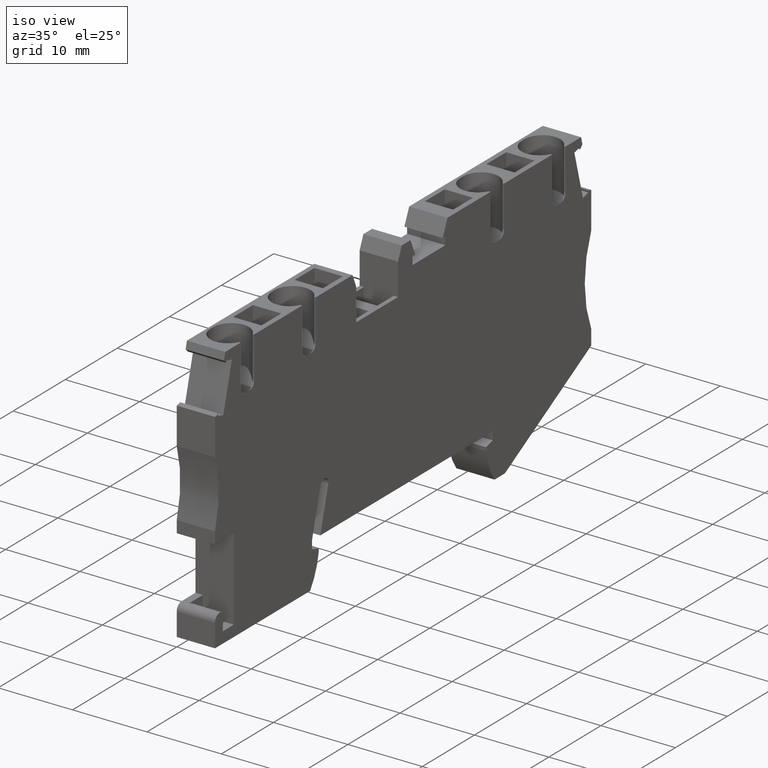
[diagram: clean part render]
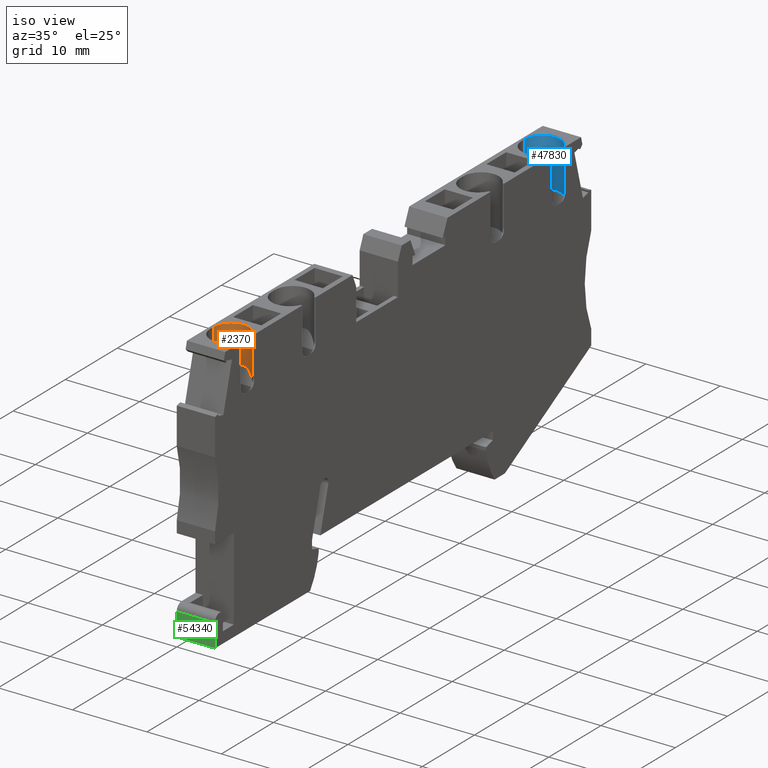
[diagram: same view with three faces highlighted in distinct colors, each labeled with its STEP entity id]
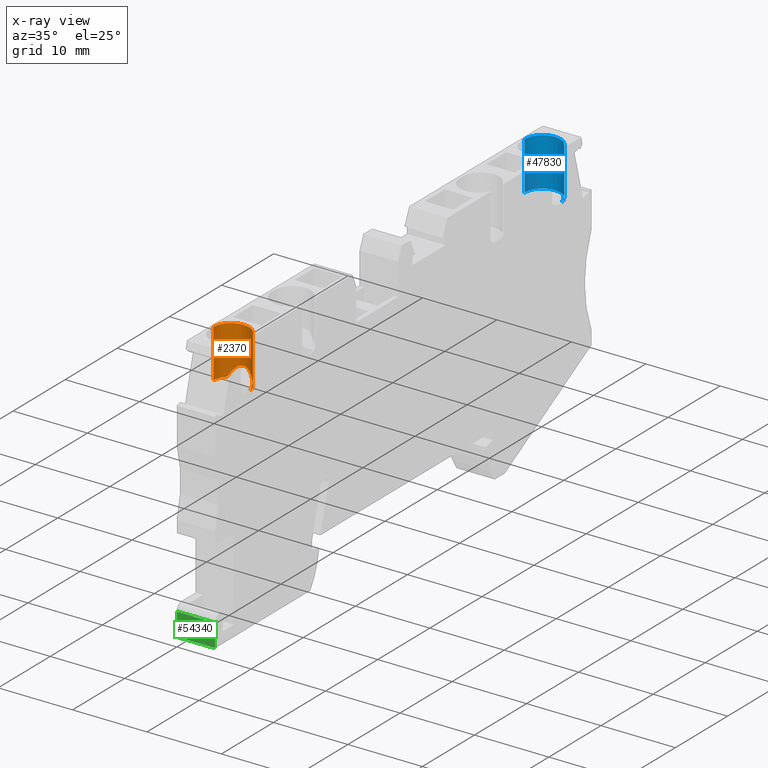
[diagram: x-ray of the same camera — body ghosted, the three highlighted faces saturated]
A machine part, iso view with three faces highlighted in distinct colors.
The next image is the same camera in x-ray (body ghosted, the three faces saturated) — at least one of them is partly hidden behind the body in this view.
Their STEP definitions:

[orange] entity #2370 — the highlighted cylindrical surface (edge-blend (fillet) strip) has radius 2.4 mm, axis along (-0, -0, -1).
#100=CARTESIAN_POINT('',(3.0302664117588,29.6726321138694,
-4.80000000000001));
#110=VERTEX_POINT('',#100);
#160=CARTESIAN_POINT('',(2.76772279777433,31.8108782585317,
-4.80000000000475));
#170=DIRECTION('',(0.12186934340538,-0.992546151641294,
1.13103740604827E-12));
#180=VECTOR('',#170,1.);
#190=LINE('',#160,#180);
#200=CARTESIAN_POINT('',(3.82241714388484,23.2210821281982,
-4.79999999999497));
#210=VERTEX_POINT('',#200);
#220=EDGE_CURVE('',#110,#210,#190,.T.);
#950=CARTESIAN_POINT('',(2.7677227977839,31.8108782585354,
-2.40000000000001));
#960=DIRECTION('',(0.121869343405031,-0.992546151641337,0.));
#970=DIRECTION('',(-0.992546151641336,-0.121869343405031,0.));
#980=AXIS2_PLACEMENT_3D('',#950,#960,#970);
#990=CYLINDRICAL_SURFACE('',#980,2.4);
#1000=CARTESIAN_POINT('',(2.76772279778444,31.8108782585359,
-2.400000000014));
#1010=DIRECTION('',(0.12186934340538,-0.992546151641294,
1.00840768931766E-12));
#1020=DIRECTION('',(-0.992546151641294,-0.12186934340538,
3.13113473914181E-12));
#1030=AXIS2_PLACEMENT_3D('',#1000,#1010,#1020);
#1040=CYLINDRICAL_SURFACE('',#1030,2.4);
#1050=CARTESIAN_POINT('',(3.70054780049966,24.2136282798484,
0.999999999993703));
#1060=DIRECTION('',(2.98489742583541E-12,1.38248290075582E-12,1.));
#1070=DIRECTION('',(0.992546151641279,0.121869343405497,
-3.13113473914193E-12));
#1080=AXIS2_PLACEMENT_3D('',#1050,#1060,#1070);
#1090=CYLINDRICAL_SURFACE('',#1080,1.);
#1100=CARTESIAN_POINT('',(4.69309395213732,24.3354976232521,
-0.218257577082248));
#1110=CARTESIAN_POINT('',(4.69510129655375,24.3191491149245,
-0.218257577082231));
#1120=CARTESIAN_POINT('',(4.69670914462344,24.3027127877051,
-0.21807078793209));
#1130=CARTESIAN_POINT('',(4.69790958543573,24.2862193946054,
-0.21769616423447));
#1140=CARTESIAN_POINT('',(4.69911001901502,24.2697261008831,
-0.217321542794066));
#1150=CARTESIAN_POINT('',(4.69990297888151,24.2531761266694,
-0.216759078526361));
#1160=CARTESIAN_POINT('',(4.70028384065575,24.2366032663707,
-0.216011075517101));
#1170=CARTESIAN_POINT('',(4.70066470107563,24.2200304650058,
-0.215263075167767));
#1180=CARTESIAN_POINT('',(4.70063343317514,24.2034351812846,
-0.214329551570628));
#1190=CARTESIAN_POINT('',(4.70018927362776,24.186852821026,
-0.213216285581658));
#1200=CARTESIAN_POINT('',(4.69974511468027,24.1702704831643,
-0.212103021096318));
#1210=CARTESIAN_POINT('',(4.69888806935965,24.1537014690936,
-0.210810051599344));
#1220=CARTESIAN_POINT('',(4.6976214604384,24.1371814574852,
-0.209346513433232));
#1230=CARTESIAN_POINT('',(4.69635485067882,24.1206614349429,
-0.207882974298452));
#1240=CARTESIAN_POINT('',(4.6946787146372,24.1041907940216,
-0.206248921879798));
#1250=CARTESIAN_POINT('',(4.69260037860994,24.0878042668063,
-0.204456509656588));
#1260=CARTESIAN_POINT('',(4.6905220372498,24.0714176975441,
-0.202664092834156));
#1270=CARTESIAN_POINT('',(4.68804156011477,24.0551155866916,
-0.20071338449849));
#1280=CARTESIAN_POINT('',(4.68516992616435,24.0389306277603,
-0.198619041852016));
#1290=CARTESIAN_POINT('',(4.6822982794351,24.0227455968057,
-0.196524689885678));
#1300=CARTESIAN_POINT('',(4.67903556113551,24.0066780190376,
-0.194286779224982));
#1310=CARTESIAN_POINT('',(4.67539581462032,23.9907575788606,
-0.191921828818129));
#1320=CARTESIAN_POINT('',(4.67175647986065,23.9748389397236,
-0.189557145952272));
#1330=CARTESIAN_POINT('',(4.66774445156154,23.9590762297988,
-0.187067547628206));
#1340=CARTESIAN_POINT('',(4.6633357848169,23.9433704450898,
-0.18444811097202));
#1350=CARTESIAN_POINT('',(4.65452328558711,23.9119760976219,
-0.179212109964879));
#1360=CARTESIAN_POINT('',(4.64416096003364,23.8809726129746,
-0.17348017702119));
#1370=CARTESIAN_POINT('',(4.63230909522656,23.8505568135451,
-0.167378541346332));
#1380=CARTESIAN_POINT('',(4.62045735835379,23.8201413424372,
-0.161276971535245));
#1390=CARTESIAN_POINT('',(4.6071179653258,23.7903188851608,
-0.154807334909349));
#1400=CARTESIAN_POINT('',(4.59238838661862,23.7612784495764,
-0.148113792822767));
#1410=CARTESIAN_POINT('',(4.57765874967341,23.7322378991715,
-0.141420224271158));
#1420=CARTESIAN_POINT('',(4.56154136809715,23.7039839159729,
-0.134504457880123));
#1430=CARTESIAN_POINT('',(4.54416472026495,23.6766827586995,
-0.127516013848559));
#1440=CARTESIAN_POINT('',(4.53547648033003,23.663032312009,
-0.124021825607863));
#1450=CARTESIAN_POINT('',(4.52647410188176,23.6496200497468,
-0.120509571688361));
#1460=CARTESIAN_POINT('',(4.51717586276536,23.6364639982816,
-0.116997504508465));
#1470=CARTESIAN_POINT('',(4.50788420952842,23.6233172651581,
-0.113487924901837));
#1480=CARTESIAN_POINT('',(4.49827624375573,23.6103951051443,
-0.109970314052862));
#1490=CARTESIAN_POINT('',(4.48832642173269,23.5976698040361,
-0.106448833256284));
#1500=CARTESIAN_POINT('',(4.46843281867812,23.5722269279313,
-0.0994080097150036));
#1510=CARTESIAN_POINT('',(4.44722157744066,23.5476436877353,
-0.0923711030120891));
#1520=CARTESIAN_POINT('',(4.42480159884346,23.524094788569,
-0.0854804788657493));
#1530=CARTESIAN_POINT('',(4.40238179293491,23.5005460707868,
-0.0785899077940616));
#1540=CARTESIAN_POINT('',(4.37875654722166,23.4780354965052,
-0.0718471964624229));
#1550=CARTESIAN_POINT('',(4.35406871561483,23.4567198220176,
-0.0653881134643867));
#1560=CARTESIAN_POINT('',(4.32938073164925,23.4354040159823,
-0.0589289906046975));
#1570=CARTESIAN_POINT('',(4.30363439013981,23.4152866823228,
-0.052754995783437));
#1580=CARTESIAN_POINT('',(4.27699607225343,23.3964946371711,
-0.0469850169134262));
#1590=CARTESIAN_POINT('',(4.26367706408958,23.3870987209628,
-0.0441000601379009));
#1600=CARTESIAN_POINT('',(4.25013579446914,23.3780339249628,
-0.0413158838016215));
#1610=CARTESIAN_POINT('',(4.23639421230892,23.3693128038856,
-0.0386451672767866));
#1620=CARTESIAN_POINT('',(4.22265575772664,23.3605936677317,
-0.0359750586058358));
#1630=CARTESIAN_POINT('',(4.20871517465638,23.352215230706,
-0.0334174451474615));
#1640=CARTESIAN_POINT('',(4.19452053638074,23.3441508872696,
-0.0309723698893231));
#1650=CARTESIAN_POINT('',(4.18033184828999,23.3360899242882,
-0.0285283195709945));
#1660=CARTESIAN_POINT('',(4.16591492134812,23.3283590142944,
-0.0262016939255127));
#1670=CARTESIAN_POINT('',(4.15129532561139,23.3209767976866,
-0.0240055871570378));
#1680=CARTESIAN_POINT('',(4.13667574250509,23.3135945874567,
-0.0218094822858623));
#1690=CARTESIAN_POINT('',(4.12185373589116,23.3065612034003,
-0.0197439478260299));
#1700=CARTESIAN_POINT('',(4.10685698779988,23.2998926264367,
-0.0178202778407761));
#1710=CARTESIAN_POINT('',(4.09186022882372,23.2932240446329,
-0.0158966064592927));
#1720=CARTESIAN_POINT('',(4.07668899710262,23.2869203873977,
-0.0141148426023882));
#1730=CARTESIAN_POINT('',(4.06137227411581,23.2809945364957,
-0.0124841907803215));
#1740=CARTESIAN_POINT('',(4.04605411115649,23.2750681284861,
-0.0108533856556333));
#1750=CARTESIAN_POINT('',(4.03059690225624,23.2695217588305,
-0.00937428352168369));
#1760=CARTESIAN_POINT('',(4.01501232411688,23.2643590538714,
-0.00805230250658976));
#1770=CARTESIAN_POINT('',(3.99942083398203,23.2591940591749,
-0.00672973517297401));
#1780=CARTESIAN_POINT('',(3.98367202822435,23.254403566421,
-0.00556204332547662));
#1790=CARTESIAN_POINT('',(3.96779762735809,23.2500010022949,
-0.00455663736925323));
#1800=CARTESIAN_POINT('',(3.95192324538313,23.2455984434081,
-0.00355123260951102));
#1810=CARTESIAN_POINT('',(3.93592360987908,23.2415839177306,
-0.00270814560130865));
#1820=CARTESIAN_POINT('',(3.91983219549759,23.2379672966623,
-0.0020323009959855));
#1830=CARTESIAN_POINT('',(3.88763283678963,23.2307303393427,
-0.000679917522307328));
#1840=CARTESIAN_POINT('',(3.8551403750735,23.2251000357765,
-5.38667812262807E-12));
#1850=CARTESIAN_POINT('',(3.82241714390252,23.2210821282058,
-5.27775441850125E-12));
#1860=B_SPLINE_CURVE_WITH_KNOTS('',3,(#1100,#1110,#1120,#1130,#1140,
#1150,#1160,#1170,#1180,#1190,#1200,#1210,#1220,#1230,#1240,#1250,#1260,
#1270,#1280,#1290,#1300,#1310,#1320,#1330,#1340,#1350,#1360,#1370,#1380,
#1390,#1400,#1410,#1420,#1430,#1440,#1450,#1460,#1470,#1480,#1490,#1500,
#1510,#1520,#1530,#1540,#1550,#1560,#1570,#1580,#1590,#1600,#1610,#1620,
#1630,#1640,#1650,#1660,#1670,#1680,#1690,#1700,#1710,#1720,#1730,#1740,
#1750,#1760,#1770,#1780,#1790,#1800,#1810,#1820,#1830,#1840,#1850),
.UNSPECIFIED.,.F.,.F.,(4,3,3,3,3,3,3,3,3,3,3,3,3,3,3,3,3,3,3,3,3,3,3,3,3
,4),(0.,0.0495222692515205,0.0992298942328629,0.14906498941214,
0.198959033159793,0.248837074434924,0.298621508203579,0.348235771127345,
0.397706633074324,0.497087658472134,0.596803861500138,0.696371962687115,
0.745940559031205,0.795428028472669,0.894905849219323,0.994675469479325,
1.09424413440797,1.14381654088023,1.19327271568538,1.24281586857581,
1.2923952060014,1.34194342067796,1.39140236454927,1.44088137071391,
1.49040354021052,1.58933923289349),.UNSPECIFIED.);
#1870=SURFACE_CURVE('',#1860,(#1040,#1090),.CURVE_3D.);
#1880=CARTESIAN_POINT('',(4.69309395213732,24.3354976232521,
-0.218257577072674));
#1890=VERTEX_POINT('',#1880);
#1900=CARTESIAN_POINT('',(3.82241714390137,23.2210821282148,
-2.84813481314502E-14));
#1910=VERTEX_POINT('',#1900);
#1920=EDGE_CURVE('',#1890,#1910,#1870,.T.);
#1930=ORIENTED_EDGE('',*,*,#1920,.F.);
#1940=CARTESIAN_POINT('',(3.82241714389476,23.2210821282039,
-2.40000000000528));
#1950=DIRECTION('',(-0.12186934340538,0.992546151641294,
-1.00840768931765E-12));
#1960=DIRECTION('',(-0.992546151641294,-0.121869343405379,
3.13113473914181E-12));
#1970=AXIS2_PLACEMENT_3D('',#1940,#1950,#1960);
#1980=CIRCLE('',#1970,2.4);
#1990=CARTESIAN_POINT('',(5.49772121204459,23.4267836025953,
-0.693822054213998));
#2000=VERTEX_POINT('',#1990);
#2010=EDGE_CURVE('',#1910,#2000,#1980,.T.);
#2020=ORIENTED_EDGE('',*,*,#2010,.F.);
#2030=CARTESIAN_POINT('',(4.26354537927533,19.6283809601105,
-2.40000000000163));
#2040=DIRECTION('',(0.951056516295263,-0.309016994374611,
-2.41160029156007E-12));
#2050=DIRECTION('',(-0.309016994374611,-0.951056516295263,
2.23720246206797E-12));
#2060=AXIS2_PLACEMENT_3D('',#2030,#2040,#2050);
#2070=ELLIPSE('',#2060,5.67888379956744,2.4);
#2080=CARTESIAN_POINT('',(5.49772121203105,23.42678360259,
-4.10617794579784));
#2090=VERTEX_POINT('',#2080);
#2100=EDGE_CURVE('',#2090,#2000,#2070,.T.);
#2110=ORIENTED_EDGE('',*,*,#2100,.T.);
#2120=CARTESIAN_POINT('',(3.82241714389476,23.2210821282039,
-2.40000000000528));
#2130=DIRECTION('',(-0.12186934340538,0.992546151641294,
-1.00840768931765E-12));
#2140=DIRECTION('',(-0.992546151641294,-0.121869343405379,
3.13113473914181E-12));
#2150=AXIS2_PLACEMENT_3D('',#2120,#2130,#2140);
#2160=CIRCLE('',#2150,2.4);
#2170=EDGE_CURVE('',#2090,#210,#2160,.T.);
#2180=ORIENTED_EDGE('',*,*,#2170,.F.);
#2190=ORIENTED_EDGE('',*,*,#220,.T.);
#2200=CARTESIAN_POINT('',(3.0302664117588,29.6726321138694,
-2.40000000000001));
#2210=DIRECTION('',(-0.121869343405031,0.992546151641336,0.));
#2220=DIRECTION('',(-0.992546151641336,-0.121869343405031,0.));
#2230=AXIS2_PLACEMENT_3D('',#2200,#2210,#2220);
#2240=CIRCLE('',#2230,2.4);
#2250=CARTESIAN_POINT('',(4.02281256340008,29.7945014572744,
-0.218257577072847));
#2260=VERTEX_POINT('',#2250);
#2270=EDGE_CURVE('',#2260,#110,#2240,.T.);
#2280=ORIENTED_EDGE('',*,*,#2270,.T.);
#2290=CARTESIAN_POINT('',(3.76026894943219,31.9327476019444,
-0.218257577081332));
#2300=DIRECTION('',(0.12186934340538,-0.992546151641294,
1.13103740604827E-12));
#2310=VECTOR('',#2300,1.);
#2320=LINE('',#2290,#2310);
#2330=EDGE_CURVE('',#2260,#1890,#2320,.T.);
#2340=ORIENTED_EDGE('',*,*,#2330,.F.);
#2350=EDGE_LOOP('',(#2340,#2280,#2190,#2180,#2110,#2020,#1930));
#2360=FACE_OUTER_BOUND('',#2350,.T.);
#2370=ADVANCED_FACE('',(#2360),#990,.F.);

[blue] entity #47830 — the highlighted cylindrical surface (edge-blend (fillet) strip) has radius 2.4 mm, axis along (0, 0, 1).
#31400=CARTESIAN_POINT('',(63.3274451239699,37.0761947257315,
-0.218257577073019));
#31410=VERTEX_POINT('',#31400);
#31440=CARTESIAN_POINT('',(62.3348989723283,36.9543253823263,
-2.40000000000001));
#31450=DIRECTION('',(-0.121869343405147,0.992546151641322,0.));
#31460=DIRECTION('',(0.992546151641322,0.121869343405147,0.));
#31470=AXIS2_PLACEMENT_3D('',#31440,#31450,#31460);
#31480=CIRCLE('',#31470,2.4);
#31490=CARTESIAN_POINT('',(62.3348989723377,36.9543253823248,
-4.80000000000001));
#31500=VERTEX_POINT('',#31490);
#31510=EDGE_CURVE('',#31410,#31500,#31480,.T.);
#34460=CARTESIAN_POINT('',(63.1270497044519,30.5027753966438,
-2.79531786404291E-14));
#34470=VERTEX_POINT('',#34460);
#36020=CARTESIAN_POINT('',(63.1270497044689,30.5027753966569,
-4.79999999999058));
#36030=VERTEX_POINT('',#36020);
#36060=CARTESIAN_POINT('',(63.1270497044594,30.5027753966585,
-2.39999999999058));
#36070=DIRECTION('',(-0.121869343404804,0.992546151641365,
-1.13103740604782E-12));
#36080=DIRECTION('',(0.992546151641365,0.121869343404804,
3.8387857648633E-12));
#36090=AXIS2_PLACEMENT_3D('',#36060,#36070,#36080);
#36100=CIRCLE('',#36090,2.40000000000001);
#36110=EDGE_CURVE('',#34470,#36030,#36100,.T.);
#38180=CARTESIAN_POINT('',(63.1630859818363,30.2092834698012,
-4.79999999999025));
#38190=DIRECTION('',(-0.121869343404804,0.992546151641365,
-1.13103740604782E-12));
#38200=VECTOR('',#38190,1.);
#38210=LINE('',#38180,#38200);
#38220=EDGE_CURVE('',#36030,#31500,#38210,.T.);
#46720=CARTESIAN_POINT('',(63.1630859818291,30.2092834698035,
-2.40000000000001));
#46730=DIRECTION('',(-0.121869343405148,0.992546151641323,0.));
#46740=DIRECTION('',(0.992546151641323,0.121869343405148,0.));
#46750=AXIS2_PLACEMENT_3D('',#46720,#46730,#46740);
#46760=CYLINDRICAL_SURFACE('',#46750,2.4);
#46770=CARTESIAN_POINT('',(64.1556321334602,30.331152813209,
-0.218257577059555));
#46780=DIRECTION('',(-0.121869343404804,0.992546151641365,
-1.13103740604781E-12));
#46790=VECTOR('',#46780,1.);
#46800=LINE('',#46770,#46790);
#46810=CARTESIAN_POINT('',(63.9977265125641,31.6171908927157,
-0.218257577061042));
#46820=VERTEX_POINT('',#46810);
#46830=EDGE_CURVE('',#46820,#31410,#46800,.T.);
#46840=ORIENTED_EDGE('',*,*,#46830,.T.);
#46850=CARTESIAN_POINT('',(63.0051803610421,31.4953215483022,
1.00000000000827));
#46860=DIRECTION('',(-3.94801515072011E-12,6.54778918764693E-13,1.));
#46870=DIRECTION('',(-0.992546151641365,-0.121869343404804,
-3.8387857648633E-12));
#46880=AXIS2_PLACEMENT_3D('',#46850,#46860,#46870);
#46890=CYLINDRICAL_SURFACE('',#46880,1.);
#46900=CARTESIAN_POINT('',(63.1630859818268,30.2092834698027,
-2.39999999999025));
#46910=DIRECTION('',(-0.121869343404804,0.992546151641366,
-1.13103740604782E-12));
#46920=DIRECTION('',(0.992546151641365,0.121869343404804,
3.8387857648633E-12));
#46930=AXIS2_PLACEMENT_3D('',#46900,#46910,#46920);
#46940=CYLINDRICAL_SURFACE('',#46930,2.4);
#46950=CARTESIAN_POINT('',(63.9977265125643,31.6171908927157,
-0.218257577061158));
#46960=CARTESIAN_POINT('',(63.9997522145442,31.6006928741701,
-0.218257577068888));
#46970=CARTESIAN_POINT('',(64.001365343558,31.5841514165493,
-0.218067316109941));
#46980=CARTESIAN_POINT('',(64.0025645846775,31.5676037069076,
-0.217689124932017));
#46990=CARTESIAN_POINT('',(64.0037638300489,31.5510559385959,
-0.217310932413213));
#47000=CARTESIAN_POINT('',(64.0045491807742,31.5345023518314,
-0.216744838382628));
#47010=CARTESIAN_POINT('',(64.0049236561439,31.5179786423022,
-0.215996705074004));
#47020=CARTESIAN_POINT('',(64.005298266334,31.5014489838286,
-0.215248302418879));
#47030=CARTESIAN_POINT('',(64.0052623599498,31.4849749303072,
-0.214319453803042));
#47040=CARTESIAN_POINT('',(64.0048210555576,31.4685170360304,
-0.213214334856575));
#47050=CARTESIAN_POINT('',(64.0043795206013,31.4520505431524,
-0.212108638529013));
#47060=CARTESIAN_POINT('',(64.0035303556098,31.4355759750499,
-0.210824344159128));
#47070=CARTESIAN_POINT('',(64.00227310872,31.4191240907476,
-0.209368591833859));
#47080=CARTESIAN_POINT('',(64.0010158665856,31.4026722686717,
-0.207912845014716));
#47090=CARTESIAN_POINT('',(63.9993505472256,31.3862434655127,
-0.206285674118484));
#47100=CARTESIAN_POINT('',(63.9972800700191,31.3698696951581,
-0.204497188938844));
#47110=CARTESIAN_POINT('',(63.9952095965674,31.3534959544968,
-0.202708707002559));
#47120=CARTESIAN_POINT('',(63.9927339986313,31.3371775714581,
-0.200758961030407));
#47130=CARTESIAN_POINT('',(63.9898596965807,31.3209466470898,
-0.198660784950287));
#47140=CARTESIAN_POINT('',(63.986985394744,31.3047157239293,
-0.196562609026297));
#47150=CARTESIAN_POINT('',(63.9837124457505,31.2885725616699,
-0.194316065029682));
#47160=CARTESIAN_POINT('',(63.9800506595587,31.2725483428224,
-0.191936309705982));
#47170=CARTESIAN_POINT('',(63.9763888678494,31.2565240998307,
-0.189556550796622));
#47180=CARTESIAN_POINT('',(63.9723383140675,31.2406190723567,
-0.187043649637802));
#47190=CARTESIAN_POINT('',(63.9679118900246,31.224862673217,
-0.184414573471664));
#47200=CARTESIAN_POINT('',(63.9634854526562,31.2091062266433,
-0.181785489390802));
#47210=CARTESIAN_POINT('',(63.9586832333466,31.1934986465699,
-0.179040302012012));
#47220=CARTESIAN_POINT('',(63.9535207333336,31.1780668583586,
-0.176197207619857));
#47230=CARTESIAN_POINT('',(63.9483589070478,31.1626370840581,
-0.173354484263038));
#47240=CARTESIAN_POINT('',(63.9428405497679,31.1473882259493,
-0.170415406049728));
#47250=CARTESIAN_POINT('',(63.9369386847306,31.1322424574056,
-0.167377011765616));
#47260=CARTESIAN_POINT('',(63.9251405097435,31.1019651761626,
-0.16130308306388));
#47270=CARTESIAN_POINT('',(63.9118531178184,31.0722360157479,
-0.154856457053154));
#47280=CARTESIAN_POINT('',(63.8971562061061,31.0432384897484,
-0.148175269790782));
#47290=CARTESIAN_POINT('',(63.882459369991,31.0142411129048,
-0.141494116894748));
#47300=CARTESIAN_POINT('',(63.8663551133367,30.9859797105584,
-0.134579966458527));
#47310=CARTESIAN_POINT('',(63.8489553501226,30.9586244570014,
-0.127579597207423));
#47320=CARTESIAN_POINT('',(63.8315554382494,30.9312689697279,
-0.120579168146906));
#47330=CARTESIAN_POINT('',(63.812862642267,30.9048234436436,
-0.113494071772859));
#47340=CARTESIAN_POINT('',(63.793013442863,30.8794327310662,
-0.10646810931558));
#47350=CARTESIAN_POINT('',(63.7731622977298,30.8540395295497,
-0.0994414581342939));
#47360=CARTESIAN_POINT('',(63.7519985710705,30.829502044976,
-0.0924184993590315));
#47370=CARTESIAN_POINT('',(63.7296293617288,30.8059931465855,
-0.0855404859815477));
#47380=CARTESIAN_POINT('',(63.7072603285095,30.7824844332906,
-0.0786625267575974));
#47390=CARTESIAN_POINT('',(63.6836890481388,30.7600080457023,
-0.0719310621968579));
#47400=CARTESIAN_POINT('',(63.6590560392574,30.7387195410019,
-0.0654809687434348));
#47410=CARTESIAN_POINT('',(63.6344228798376,30.7174309062022,
-0.0590308358718814));
#47420=CARTESIAN_POINT('',(63.6087321444588,30.6973336580449,
-0.0528635458858422));
#47430=CARTESIAN_POINT('',(63.5821472936409,30.6785540424026,
-0.04709743637528));
#47440=CARTESIAN_POINT('',(63.5688496957021,30.6691605806914,
-0.0442132597264077));
#47450=CARTESIAN_POINT('',(63.555354542547,30.6601127005211,
-0.0414341712223731));
#47460=CARTESIAN_POINT('',(63.5416044104082,30.6513729484058,
-0.0387575224928611));
#47470=CARTESIAN_POINT('',(63.5278537788038,30.642632878824,
-0.0360807765356202));
#47480=CARTESIAN_POINT('',(63.5138557865906,30.6342077223652,
-0.0335085655558219));
#47490=CARTESIAN_POINT('',(63.4996340108448,30.6261175514164,
-0.0310552689130589));
#47500=CARTESIAN_POINT('',(63.4854122556762,30.6180273921732,
-0.0286019758199236));
#47510=CARTESIAN_POINT('',(63.4709669370971,30.6102723566468,
-0.026267652249741));
#47520=CARTESIAN_POINT('',(63.4563240412923,30.6028702164215,
-0.0240651355988021));
#47530=CARTESIAN_POINT('',(63.4416811448545,30.5954680758762,
-0.0218626188526673));
#47540=CARTESIAN_POINT('',(63.4268409170073,30.58841895764,
-0.019791957910247));
#47550=CARTESIAN_POINT('',(63.4118310561734,30.5817378290111,
-0.0178641122451395));
#47560=CARTESIAN_POINT('',(63.3968211707663,30.5750566894442,
-0.0159362634238803));
#47570=CARTESIAN_POINT('',(63.3816419177983,30.5687436493357,
-0.0141512694801249));
#47580=CARTESIAN_POINT('',(63.3663218494786,30.5628105160168,
-0.0125179646180877));
#47590=CARTESIAN_POINT('',(63.3510027069835,30.5568777412499,
-0.0108847584601604));
#47600=CARTESIAN_POINT('',(63.3355486998871,30.5513258108446,
-0.00940334545484471));
#47610=CARTESIAN_POINT('',(63.3199177207765,30.5461427482908,
-0.00807546329939731));
#47620=CARTESIAN_POINT('',(63.3042919646335,30.5409614176161,
-0.00674802484522405));
#47630=CARTESIAN_POINT('',(63.2885130115055,30.5361579069915,
-0.00557655939645891));
#47640=CARTESIAN_POINT('',(63.2726130751656,30.5317450109063,
-0.0045682280500973));
#47650=CARTESIAN_POINT('',(63.2567131438971,30.5273321162286,
-0.00355989702534716));
#47660=CARTESIAN_POINT('',(63.2406925742293,30.5233099358799,
-0.00271472949916342));
#47670=CARTESIAN_POINT('',(63.2245849419732,30.5196875852457,
-0.00203735200595513));
#47680=CARTESIAN_POINT('',(63.2084772820041,30.5160652283792,
-0.00135997334732361));
#47690=CARTESIAN_POINT('',(63.1922829192703,30.5128427722396,
-0.000850398809610821));
#47700=CARTESIAN_POINT('',(63.176035606801,30.5100254075408,
-0.000510612222346212));
#47710=CARTESIAN_POINT('',(63.1597880224171,30.5072079956907,
-0.000170819948420889));
#47720=CARTESIAN_POINT('',(63.1434479906993,30.5047888530368,
9.48339384496364E-12));
#47730=CARTESIAN_POINT('',(63.1270497044499,30.5027753966601,
9.4199982884387E-12));
#47740=B_SPLINE_CURVE_WITH_KNOTS('',3,(#46950,#46960,#46970,#46980,
#46990,#47000,#47010,#47020,#47030,#47040,#47050,#47060,#47070,#47080,
#47090,#47100,#47110,#47120,#47130,#47140,#47150,#47160,#47170,#47180,
#47190,#47200,#47210,#47220,#47230,#47240,#47250,#47260,#47270,#47280,
#47290,#47300,#47310,#47320,#47330,#47340,#47350,#47360,#47370,#47380,
#47390,#47400,#47410,#47420,#47430,#47440,#47450,#47460,#47470,#47480,
#47490,#47500,#47510,#47520,#47530,#47540,#47550,#47560,#47570,#47580,
#47590,#47600,#47610,#47620,#47630,#47640,#47650,#47660,#47670,#47680,
#47690,#47700,#47710,#47720,#47730),.UNSPECIFIED.,.F.,.F.,(4,3,3,3,3,3,3
,3,3,3,3,3,3,3,3,3,3,3,3,3,3,3,3,3,3,3,4),(0.,0.0498321201334339,
0.0995481950887077,0.14909411969666,0.198707967250893,0.248459743894467,
0.298291079837179,0.348134719369592,0.397918126840432,0.447566855466856,
0.497095984353136,0.596498507803571,0.696070722779162,0.795337537072306,
0.894616431007381,0.994197573137692,1.09359939004754,1.14312308704161,
1.19271335117316,1.24236805227155,1.29201887061768,1.34160181740057,
1.39111400849231,1.44069122792465,1.49028025713508,1.53981117858046,
1.58933925175285),.UNSPECIFIED.);
#47750=SURFACE_CURVE('',#47740,(#46890,#46940),.CURVE_3D.);
#47760=EDGE_CURVE('',#46820,#34470,#47750,.T.);
#47770=ORIENTED_EDGE('',*,*,#47760,.F.);
#47780=ORIENTED_EDGE('',*,*,#36110,.F.);
#47790=ORIENTED_EDGE('',*,*,#38220,.F.);
#47800=ORIENTED_EDGE('',*,*,#31510,.T.);
#47810=EDGE_LOOP('',(#47800,#47790,#47780,#47770,#46840));
#47820=FACE_OUTER_BOUND('',#47810,.T.);
#47830=ADVANCED_FACE('',(#47820),#46760,.F.);

[green] entity #54340 — the highlighted planar face has unit normal (-0, -1, 0).
#24480=CARTESIAN_POINT('',(0.472001856340441,-3.03292416474261,
-2.8421709430404E-14));
#24490=DIRECTION('',(0.,0.,-1.));
#24500=VECTOR('',#24490,1.);
#24510=LINE('',#24480,#24500);
#24520=CARTESIAN_POINT('',(0.472001856340417,-3.03292416474261,
-2.8199664825479E-14));
#24530=VERTEX_POINT('',#24520);
#24540=CARTESIAN_POINT('',(0.472001856340417,-3.03292416474261,
-5.15000000000003));
#24550=VERTEX_POINT('',#24540);
#24560=EDGE_CURVE('',#24530,#24550,#24510,.T.);
#34000=CARTESIAN_POINT('',(0.84979682089522,-6.10981723483092,0.));
#34010=DIRECTION('',(0.,0.,-1.));
#34020=VECTOR('',#34010,1.);
#34030=LINE('',#34000,#34020);
#34040=CARTESIAN_POINT('',(0.849796820895223,-6.10981723483092,
-2.8199664825479E-14));
#34050=VERTEX_POINT('',#34040);
#34060=CARTESIAN_POINT('',(0.849796820895223,-6.10981723483092,
-5.15000000000003));
#34070=VERTEX_POINT('',#34060);
#34080=EDGE_CURVE('',#34050,#34070,#34030,.T.);
#48190=CARTESIAN_POINT('',(0.0996055945218983,0.,-5.15000000000003));
#48200=DIRECTION('',(-0.121869343404765,0.992546151641369,0.));
#48210=VECTOR('',#48200,1.);
#48220=LINE('',#48190,#48210);
#48230=EDGE_CURVE('',#34070,#24550,#48220,.T.);
#54180=CARTESIAN_POINT('',(0.472001856340441,-3.03292416474261,
-2.8421709430404E-14));
#54190=DIRECTION('',(-0.992546151641369,-0.121869343404765,-0.));
#54200=DIRECTION('',(-0.121869343404765,0.992546151641369,0.));
#54210=AXIS2_PLACEMENT_3D('',#54180,#54190,#54200);
#54220=PLANE('',#54210);
#54230=ORIENTED_EDGE('',*,*,#48230,.F.);
#54240=ORIENTED_EDGE('',*,*,#24560,.T.);
#54250=CARTESIAN_POINT('',(0.0996055945218983,0.,-2.8199664825479E-14));
#54260=DIRECTION('',(-0.121869343404765,0.992546151641369,0.));
#54270=VECTOR('',#54260,1.);
#54280=LINE('',#54250,#54270);
#54290=EDGE_CURVE('',#34050,#24530,#54280,.T.);
#54300=ORIENTED_EDGE('',*,*,#54290,.T.);
#54310=ORIENTED_EDGE('',*,*,#34080,.F.);
#54320=EDGE_LOOP('',(#54310,#54300,#54240,#54230));
#54330=FACE_OUTER_BOUND('',#54320,.T.);
#54340=ADVANCED_FACE('',(#54330),#54220,.T.);